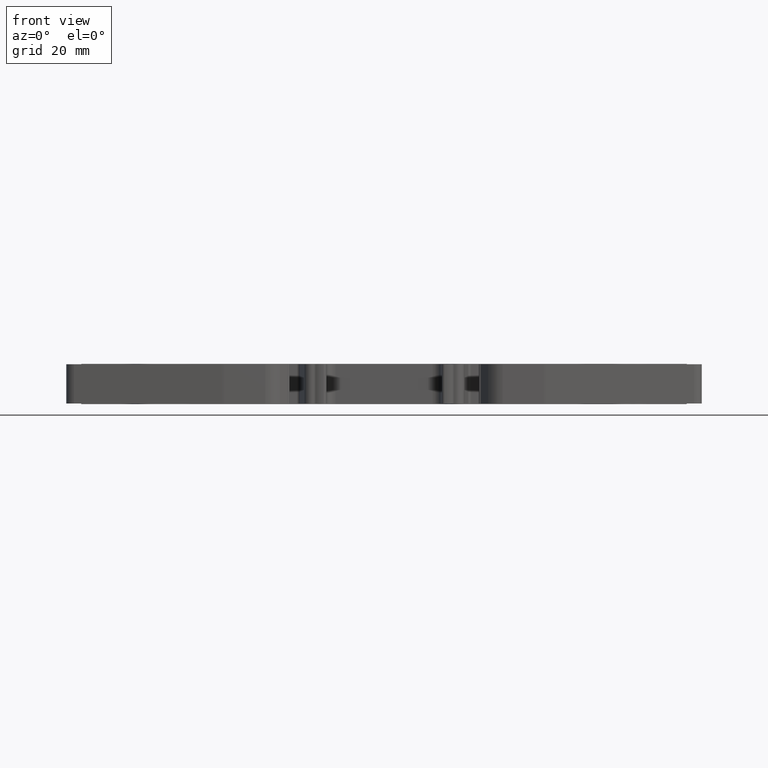
[diagram: clean part render]
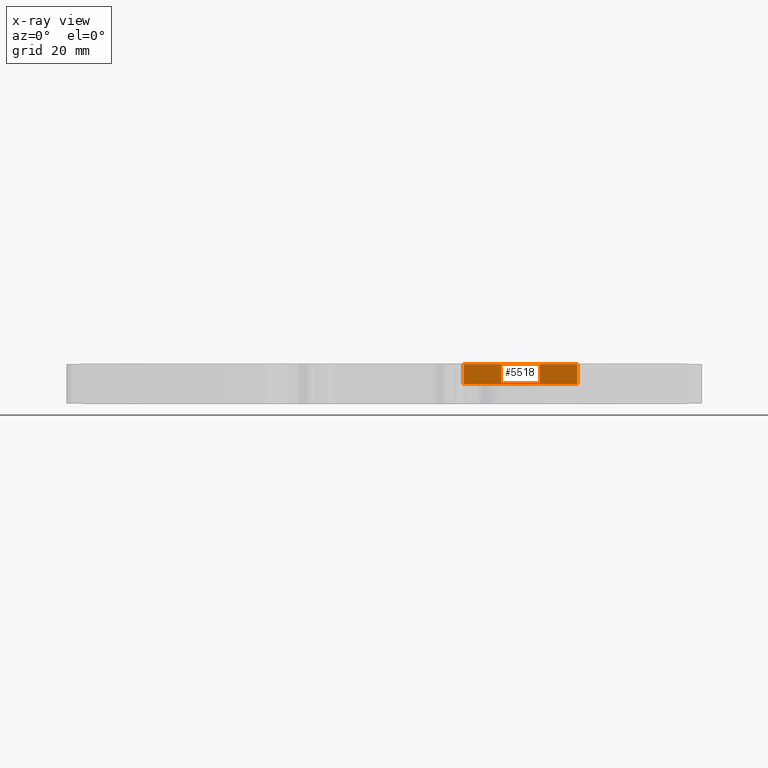
[diagram: x-ray — body ghosted, one internal face saturated and labeled with its STEP entity id]
A machine part, front view, then the same camera in x-ray: the body is ghosted and one INTERNAL B-rep face — a face not visible from any outside direction — is saturated and labeled: STEP entity #5518.
In plain terms, the highlighted planar face has unit normal (-0, -1, 0).
Its self-contained STEP definition (entity closure, byte-faithful):
#527 = VERTEX_POINT ( 'NONE', #21474 ) ;
#541 = VERTEX_POINT ( 'NONE', #21471 ) ;
#5518 = ADVANCED_FACE ( 'NONE', ( #15972 ), #15982, .F. ) ;
#5857 = EDGE_CURVE ( 'NONE', #7595, #541, #15406, .T. ) ;
#5869 = EDGE_CURVE ( 'NONE', #7592, #527, #15472, .T. ) ;
#5886 = EDGE_CURVE ( 'NONE', #541, #527, #15520, .T. ) ;
#6169 = EDGE_CURVE ( 'NONE', #7595, #7592, #14598, .T. ) ;
#7592 = VERTEX_POINT ( 'NONE', #13878 ) ;
#7595 = VERTEX_POINT ( 'NONE', #13843 ) ;
#12533 = VECTOR ( 'NONE', #14669, 1000.000000000000000 ) ;
#12958 = AXIS2_PLACEMENT_3D ( 'NONE', #15966, #15957, #15968 ) ;
#13301 = VECTOR ( 'NONE', #15481, 1000.000000000000000 ) ;
#13317 = VECTOR ( 'NONE', #15398, 1000.000000000000000 ) ;
#13368 = VECTOR ( 'NONE', #15508, 1000.000000000000000 ) ;
#13843 = CARTESIAN_POINT ( 'NONE',  ( 290.8768794653404900, 17.95365339502480100, 6.200000000000000200 ) ) ;
#13878 = CARTESIAN_POINT ( 'NONE',  ( 271.9117403883505500, 17.95365339502480100, 6.200000000000000200 ) ) ;
#14598 = LINE ( 'NONE', #14649, #12533 ) ;
#14649 = CARTESIAN_POINT ( 'NONE',  ( 290.8768794653404900, 17.95365339502480100, 6.200000000000000200 ) ) ;
#14669 = DIRECTION ( 'NONE',  ( -1.000000000000000000, 7.317524934289679800E-016, 0.0000000000000000000 ) ) ;
#15397 = CARTESIAN_POINT ( 'NONE',  ( 290.8768794653404900, 17.95365339502480100, 5.799999999999999800 ) ) ;
#15398 = DIRECTION ( 'NONE',  ( 0.0000000000000000000, 0.0000000000000000000, -1.000000000000000000 ) ) ;
#15406 = LINE ( 'NONE', #15397, #13317 ) ;
#15455 = CARTESIAN_POINT ( 'NONE',  ( 271.9117403883505500, 17.95365339502480100, 5.799999999999999800 ) ) ;
#15472 = LINE ( 'NONE', #15455, #13301 ) ;
#15481 = DIRECTION ( 'NONE',  ( 0.0000000000000000000, 0.0000000000000000000, -1.000000000000000000 ) ) ;
#15506 = CARTESIAN_POINT ( 'NONE',  ( 290.8768794653404900, 17.95365339502480100, 2.899999999999999900 ) ) ;
#15508 = DIRECTION ( 'NONE',  ( -1.000000000000000000, 7.317524934289679800E-016, 0.0000000000000000000 ) ) ;
#15520 = LINE ( 'NONE', #15506, #13368 ) ;
#15957 = DIRECTION ( 'NONE',  ( -7.317524934289679800E-016, -1.000000000000000000, 0.0000000000000000000 ) ) ;
#15966 = CARTESIAN_POINT ( 'NONE',  ( 290.8768794653404900, 17.95365339502480100, 5.799999999999999800 ) ) ;
#15968 = DIRECTION ( 'NONE',  ( 1.000000000000000000, -7.317524934289679800E-016, 0.0000000000000000000 ) ) ;
#15972 = FACE_OUTER_BOUND ( 'NONE', #21350, .T. ) ;
#15982 = PLANE ( 'NONE',  #12958 ) ;
#18746 = ORIENTED_EDGE ( 'NONE', *, *, #5857, .T. ) ;
#18759 = ORIENTED_EDGE ( 'NONE', *, *, #5886, .T. ) ;
#18766 = ORIENTED_EDGE ( 'NONE', *, *, #6169, .F. ) ;
#18773 = ORIENTED_EDGE ( 'NONE', *, *, #5869, .F. ) ;
#21350 = EDGE_LOOP ( 'NONE', ( #18759, #18773, #18766, #18746 ) ) ;
#21471 = CARTESIAN_POINT ( 'NONE',  ( 290.8768794653404900, 17.95365339502480100, 2.899999999999999900 ) ) ;
#21474 = CARTESIAN_POINT ( 'NONE',  ( 271.9117403883505500, 17.95365339502480100, 2.899999999999999900 ) ) ;